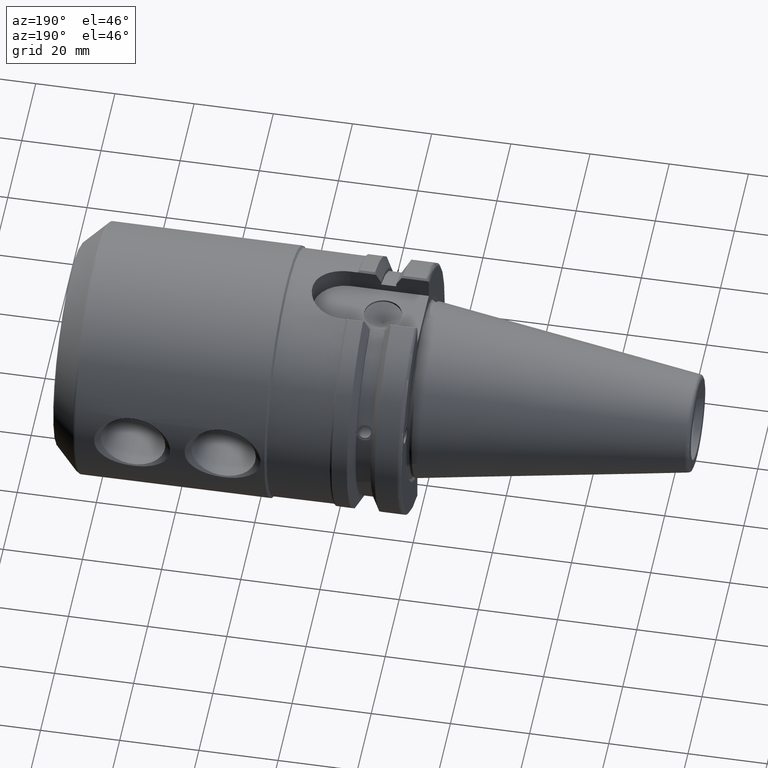
[diagram: clean part render]
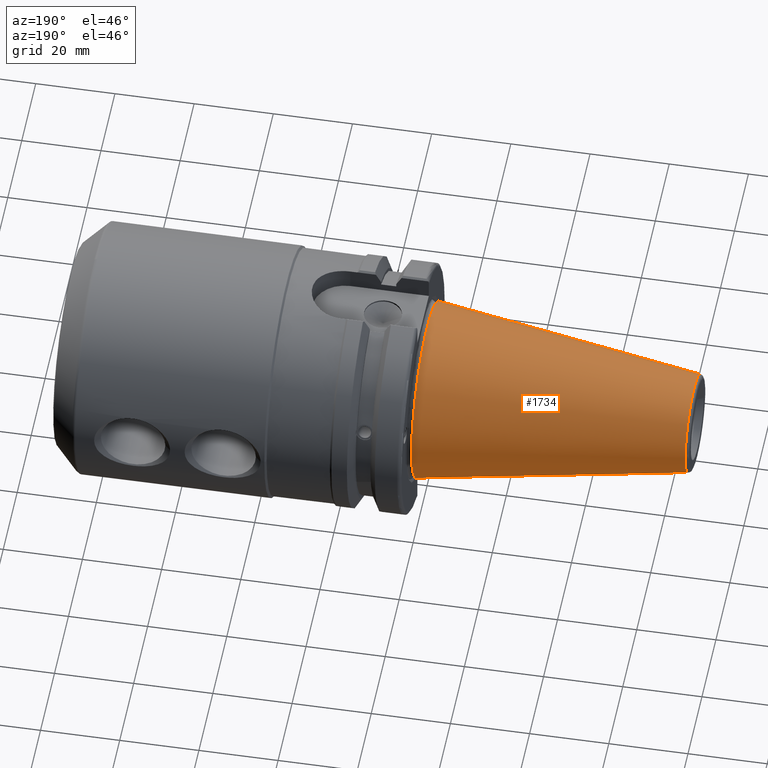
[diagram: same view with one face highlighted and labeled with its STEP entity id]
A machine part, auxiliary view. The second image highlights one B-rep face of the part: STEP entity #1734.
In plain terms, the highlighted conical surface has half-angle 8.297 deg.
Its self-contained STEP definition (entity closure, byte-faithful):
#77=CONICAL_SURFACE('',#1943,17.2484375,0.144812498238939);
#195=LINE('',#3476,#287);
#287=VECTOR('',#2383,17.2484375);
#424=FACE_OUTER_BOUND('',#535,.T.);
#535=EDGE_LOOP('',(#1486,#1487,#1488,#1489,#1490));
#636=CIRCLE('',#1937,12.3966635780937);
#637=CIRCLE('',#1938,12.3966635780937);
#641=CIRCLE('',#1944,22.225);
#814=VERTEX_POINT('',#3463);
#815=VERTEX_POINT('',#3464);
#818=VERTEX_POINT('',#3474);
#1054=EDGE_CURVE('',#814,#815,#636,.T.);
#1055=EDGE_CURVE('',#815,#814,#637,.T.);
#1059=EDGE_CURVE('',#818,#818,#641,.T.);
#1060=EDGE_CURVE('',#818,#815,#195,.T.);
#1486=ORIENTED_EDGE('',*,*,#1059,.F.);
#1487=ORIENTED_EDGE('',*,*,#1060,.T.);
#1488=ORIENTED_EDGE('',*,*,#1054,.F.);
#1489=ORIENTED_EDGE('',*,*,#1055,.F.);
#1490=ORIENTED_EDGE('',*,*,#1060,.F.);
#1734=ADVANCED_FACE('',(#424),#77,.T.);
#1937=AXIS2_PLACEMENT_3D('',#3465,#2367,#2368);
#1938=AXIS2_PLACEMENT_3D('',#3466,#2369,#2370);
#1943=AXIS2_PLACEMENT_3D('',#3473,#2379,#2380);
#1944=AXIS2_PLACEMENT_3D('',#3475,#2381,#2382);
#2367=DIRECTION('center_axis',(-1.,0.,0.));
#2368=DIRECTION('ref_axis',(0.,-1.,3.06161699786838E-17));
#2369=DIRECTION('center_axis',(-1.,0.,0.));
#2370=DIRECTION('ref_axis',(0.,-1.,3.06161699786838E-17));
#2379=DIRECTION('center_axis',(1.,0.,0.));
#2380=DIRECTION('ref_axis',(0.,1.,0.));
#2381=DIRECTION('center_axis',(1.,0.,0.));
#2382=DIRECTION('ref_axis',(0.,0.,-1.));
#2383=DIRECTION('',(-0.989532981063282,0.144306893071729,1.76724974695192E-17));
#3463=CARTESIAN_POINT('',(-67.3943068930717,-1.5181534371019E-15,12.3966635780937));
#3464=CARTESIAN_POINT('',(-67.3943068930718,-12.3966635780937,-1.5181534371019E-15));
#3465=CARTESIAN_POINT('Origin',(-67.3943068930717,0.,-1.89769179637738E-15));
#3466=CARTESIAN_POINT('Origin',(-67.3943068930717,0.,-1.89769179637738E-15));
#3473=CARTESIAN_POINT('Origin',(-34.125,0.,0.));
#3474=CARTESIAN_POINT('',(0.,-22.225,-2.72177751110499E-15));
#3475=CARTESIAN_POINT('Origin',(0.,0.,0.));
#3476=CARTESIAN_POINT('',(-34.125,-17.2484375,-2.11232437746682E-15));